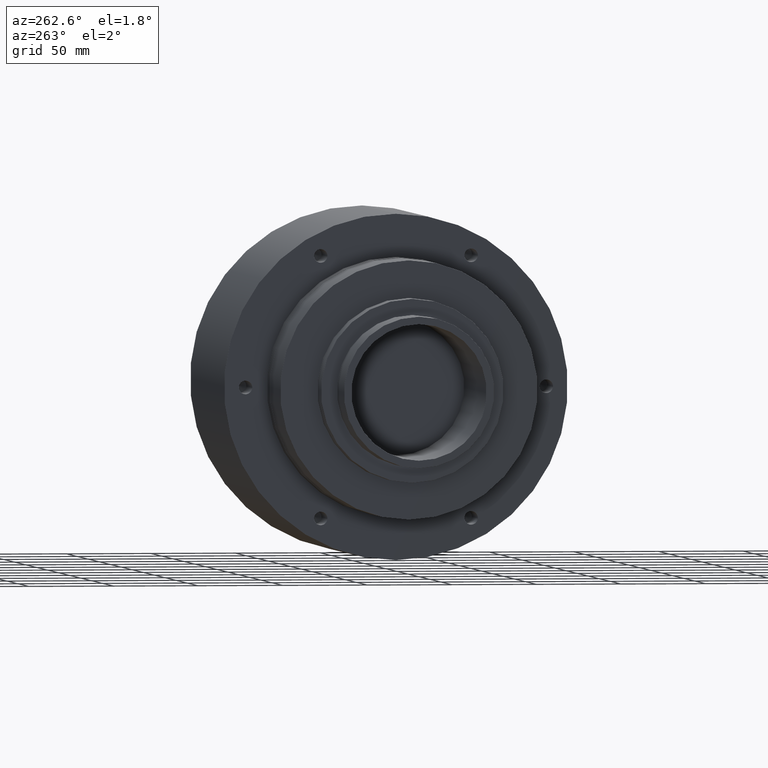
[diagram: clean part render]
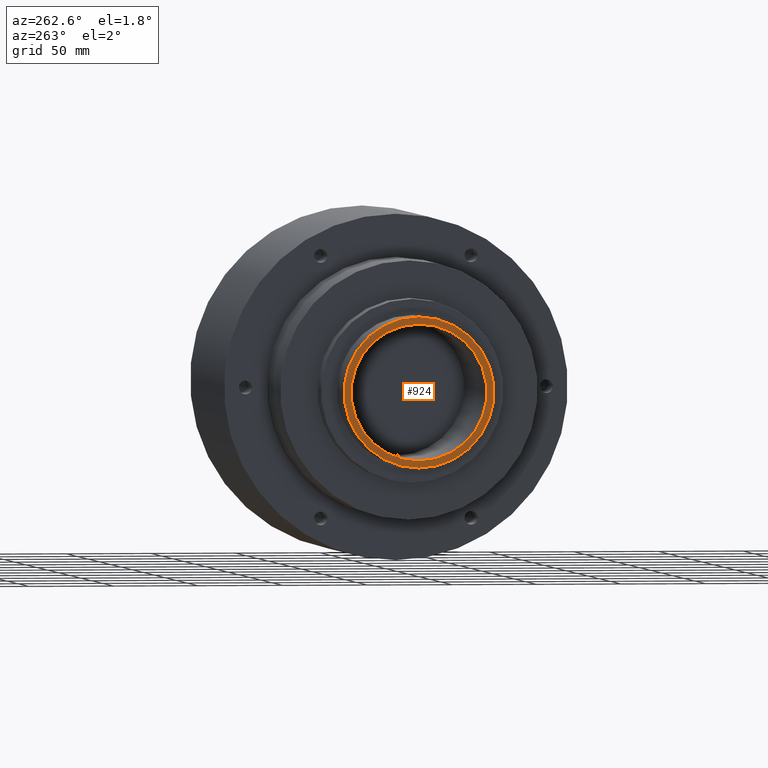
[diagram: same view with one face highlighted and labeled with its STEP entity id]
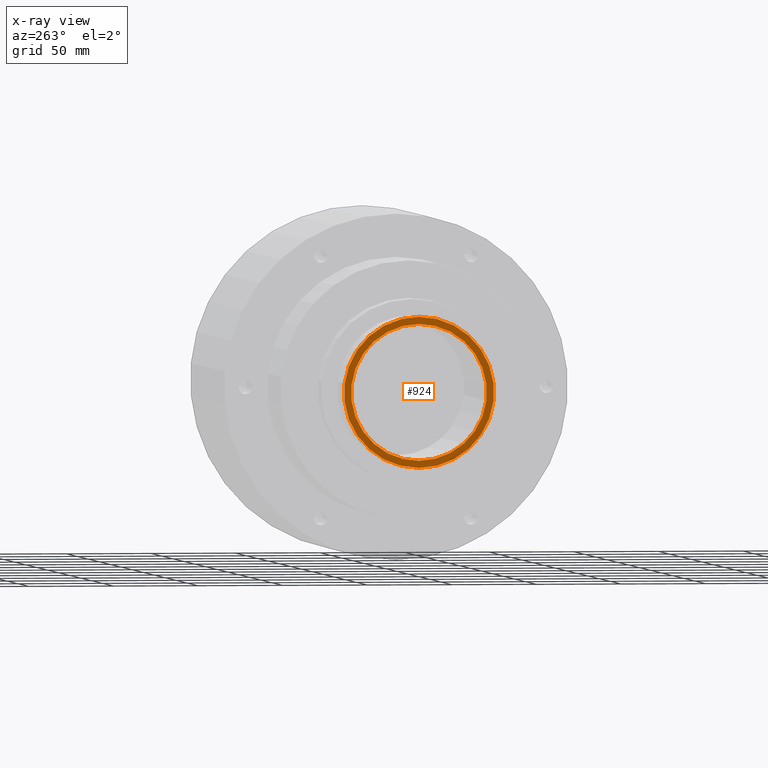
[diagram: x-ray of the same camera — body ghosted, the highlighted face saturated]
A machine part, auxiliary view. The second image highlights one B-rep face of the part: STEP entity #924.
The next image is the same camera in x-ray: the body ghosted, the highlighted face saturated — about 0% of this face is hidden behind the body in this view.
In plain terms, the highlighted planar face has unit normal (1, 0, 0).
Its self-contained STEP definition (entity closure, byte-faithful):
#245 = EDGE_CURVE ( 'NONE', #509, #510, #1525, .T. ) ;
#247 = EDGE_CURVE ( 'NONE', #512, #511, #1527, .T. ) ;
#364 = EDGE_LOOP ( 'NONE', ( #1091, #1093 ) ) ;
#366 = EDGE_LOOP ( 'NONE', ( #1095, #1097 ) ) ;
#509 = VERTEX_POINT ( 'NONE', #1943 ) ;
#510 = VERTEX_POINT ( 'NONE', #1944 ) ;
#511 = VERTEX_POINT ( 'NONE', #1945 ) ;
#512 = VERTEX_POINT ( 'NONE', #1946 ) ;
#849 = EDGE_CURVE ( 'NONE', #510, #509, #1558, .T. ) ;
#863 = EDGE_CURVE ( 'NONE', #511, #512, #1573, .T. ) ;
#924 = ADVANCED_FACE ( 'NONE', ( #2553, #2556 ), #2340, .F. ) ;
#1091 = ORIENTED_EDGE ( 'NONE', *, *, #247, .T. ) ;
#1093 = ORIENTED_EDGE ( 'NONE', *, *, #863, .T. ) ;
#1095 = ORIENTED_EDGE ( 'NONE', *, *, #849, .T. ) ;
#1097 = ORIENTED_EDGE ( 'NONE', *, *, #245, .T. ) ;
#1525 = CIRCLE ( 'NONE', #1635, 1.580000000000000300 ) ;
#1527 = CIRCLE ( 'NONE', #1637, 1.744999999999999900 ) ;
#1558 = CIRCLE ( 'NONE', #1664, 1.580000000000000300 ) ;
#1573 = CIRCLE ( 'NONE', #1678, 1.744999999999999900 ) ;
#1635 = AXIS2_PLACEMENT_3D ( 'NONE', #1887, #1894, #1895 ) ;
#1637 = AXIS2_PLACEMENT_3D ( 'NONE', #1893, #1900, #1901 ) ;
#1664 = AXIS2_PLACEMENT_3D ( 'NONE', #2113, #2114, #2115 ) ;
#1678 = AXIS2_PLACEMENT_3D ( 'NONE', #2155, #2156, #2157 ) ;
#1742 = AXIS2_PLACEMENT_3D ( 'NONE', #2339, #2342, #2343 ) ;
#1887 = CARTESIAN_POINT ( 'NONE',  ( 0.0000000000000000000, 0.0000000000000000000, 0.0000000000000000000 ) ) ;
#1893 = CARTESIAN_POINT ( 'NONE',  ( 0.0000000000000000000, 0.0000000000000000000, 0.0000000000000000000 ) ) ;
#1894 = DIRECTION ( 'NONE',  ( 1.000000000000000000, 0.0000000000000000000, 0.0000000000000000000 ) ) ;
#1895 = DIRECTION ( 'NONE',  ( 0.0000000000000000000, 0.0000000000000000000, -1.000000000000000000 ) ) ;
#1900 = DIRECTION ( 'NONE',  ( -1.000000000000000000, -0.0000000000000000000, -0.0000000000000000000 ) ) ;
#1901 = DIRECTION ( 'NONE',  ( 0.0000000000000000000, 0.0000000000000000000, -1.000000000000000000 ) ) ;
#1943 = CARTESIAN_POINT ( 'NONE',  ( 4.161799677847901200E-017, 1.934941942652818500E-016, 1.580000000000000300 ) ) ;
#1944 = CARTESIAN_POINT ( 'NONE',  ( 4.161799677847901200E-017, 0.0000000000000000000, -1.580000000000000300 ) ) ;
#1945 = CARTESIAN_POINT ( 'NONE',  ( 0.0000000000000000000, 2.140070281509999600E-016, 1.744999999999999900 ) ) ;
#1946 = CARTESIAN_POINT ( 'NONE',  ( 0.0000000000000000000, 0.0000000000000000000, -1.744999999999999900 ) ) ;
#2113 = CARTESIAN_POINT ( 'NONE',  ( 0.0000000000000000000, 0.0000000000000000000, 0.0000000000000000000 ) ) ;
#2114 = DIRECTION ( 'NONE',  ( 1.000000000000000000, 0.0000000000000000000, 0.0000000000000000000 ) ) ;
#2115 = DIRECTION ( 'NONE',  ( 0.0000000000000000000, 0.0000000000000000000, -1.000000000000000000 ) ) ;
#2155 = CARTESIAN_POINT ( 'NONE',  ( 0.0000000000000000000, 0.0000000000000000000, 0.0000000000000000000 ) ) ;
#2156 = DIRECTION ( 'NONE',  ( -1.000000000000000000, -0.0000000000000000000, -0.0000000000000000000 ) ) ;
#2157 = DIRECTION ( 'NONE',  ( 0.0000000000000000000, 0.0000000000000000000, -1.000000000000000000 ) ) ;
#2339 = CARTESIAN_POINT ( 'NONE',  ( 0.0000000000000000000, 0.0000000000000000000, 0.0000000000000000000 ) ) ;
#2340 = PLANE ( 'NONE',  #1742 ) ;
#2342 = DIRECTION ( 'NONE',  ( 1.000000000000000000, 0.0000000000000000000, 0.0000000000000000000 ) ) ;
#2343 = DIRECTION ( 'NONE',  ( 0.0000000000000000000, 0.0000000000000000000, -1.000000000000000000 ) ) ;
#2553 = FACE_OUTER_BOUND ( 'NONE', #364, .T. ) ;
#2556 = FACE_BOUND ( 'NONE', #366, .T. ) ;